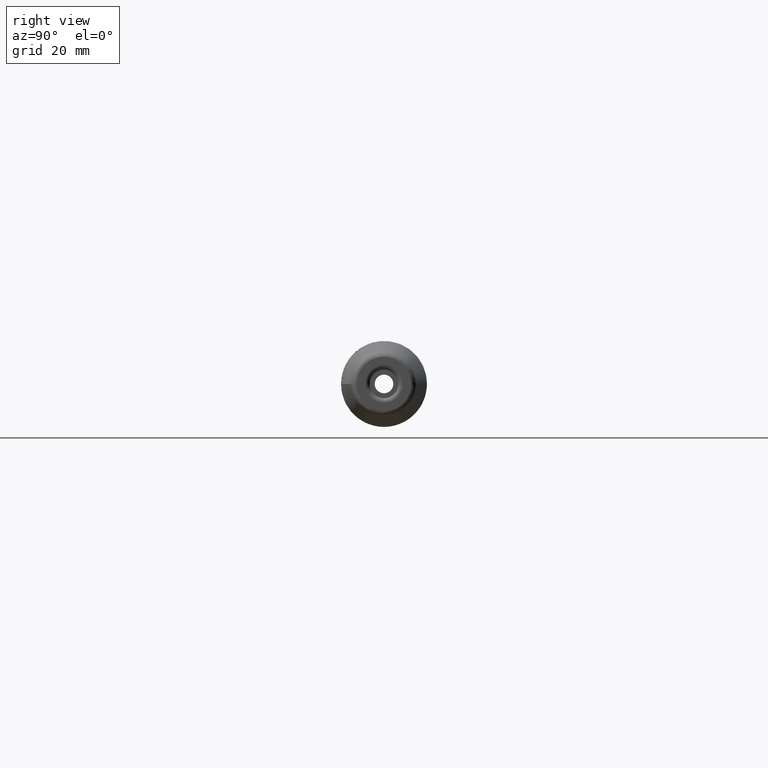
[diagram: clean part render]
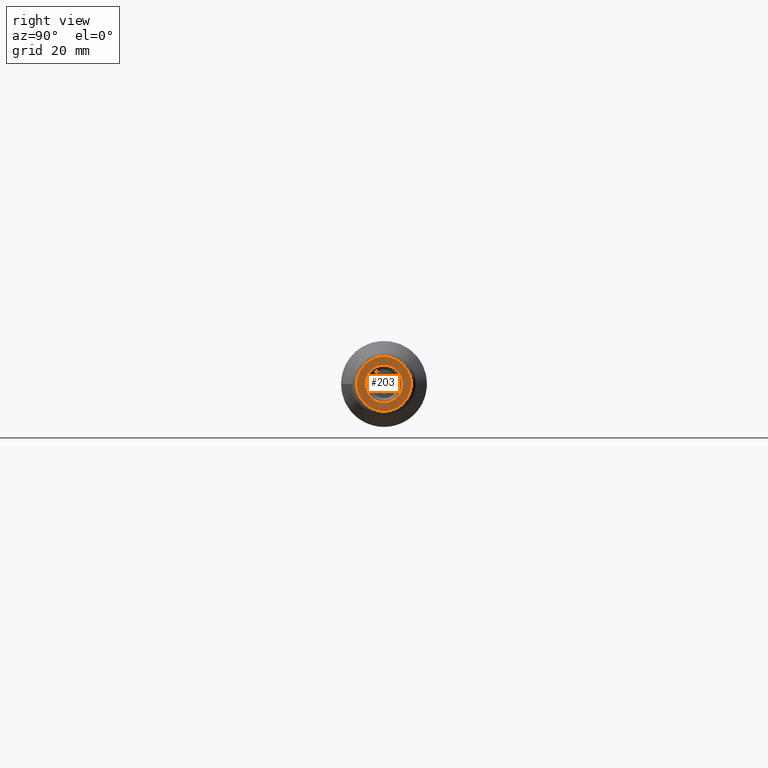
[diagram: same view with one face highlighted and labeled with its STEP entity id]
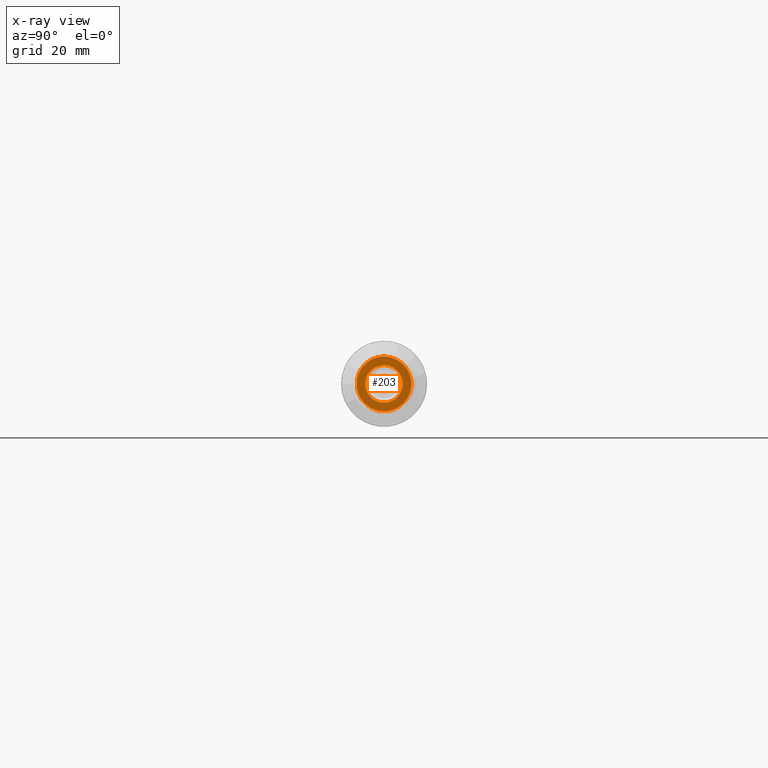
[diagram: x-ray of the same camera — body ghosted, the highlighted face saturated]
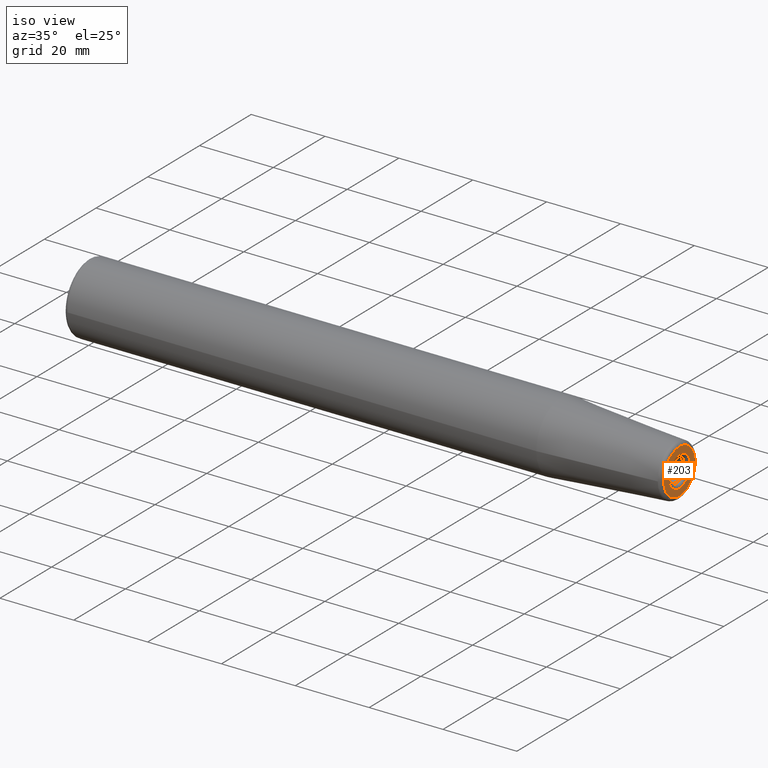
[diagram: same view with one face highlighted and labeled with its STEP entity id]
A machine part, right view. The second image highlights one B-rep face of the part: STEP entity #203.
The next image is the same camera in x-ray: the body ghosted, the highlighted face saturated — about 0% of this face is hidden behind the body in this view.
A second angle (iso view) of the same face is appended — the face is thin or edge-on in the first view.
In plain terms, the highlighted planar face has unit normal (1, 0, 0).
Its self-contained STEP definition (entity closure, byte-faithful):
#36=FACE_BOUND('',#60,.T.);
#40=PLANE('',#244);
#45=FACE_OUTER_BOUND('',#59,.T.);
#59=EDGE_LOOP('',(#148));
#60=EDGE_LOOP('',(#149));
#76=CIRCLE('',#240,4.175);
#80=CIRCLE('',#245,6.07560950834179);
#97=VERTEX_POINT('',#355);
#100=VERTEX_POINT('',#363);
#115=EDGE_CURVE('',#97,#97,#76,.T.);
#119=EDGE_CURVE('',#100,#100,#80,.T.);
#148=ORIENTED_EDGE('',*,*,#119,.F.);
#149=ORIENTED_EDGE('',*,*,#115,.F.);
#203=ADVANCED_FACE('',(#45,#36),#40,.T.);
#240=AXIS2_PLACEMENT_3D('',#356,#278,#279);
#244=AXIS2_PLACEMENT_3D('',#362,#286,#287);
#245=AXIS2_PLACEMENT_3D('',#364,#288,#289);
#278=DIRECTION('center_axis',(1.,0.,0.));
#279=DIRECTION('ref_axis',(0.,-1.,-1.83697019872103E-16));
#286=DIRECTION('center_axis',(1.,0.,0.));
#287=DIRECTION('ref_axis',(0.,0.,-1.));
#288=DIRECTION('center_axis',(-1.,0.,0.));
#289=DIRECTION('ref_axis',(0.,-1.,-1.83697019872103E-16));
#355=CARTESIAN_POINT('',(0.,-5.1129003864402E-16,-4.175));
#356=CARTESIAN_POINT('Origin',(0.,0.,0.));
#362=CARTESIAN_POINT('Origin',(0.,7.,0.));
#363=CARTESIAN_POINT('',(0.,-7.44047573726E-16,-6.07560950834179));
#364=CARTESIAN_POINT('Origin',(0.,0.,0.));